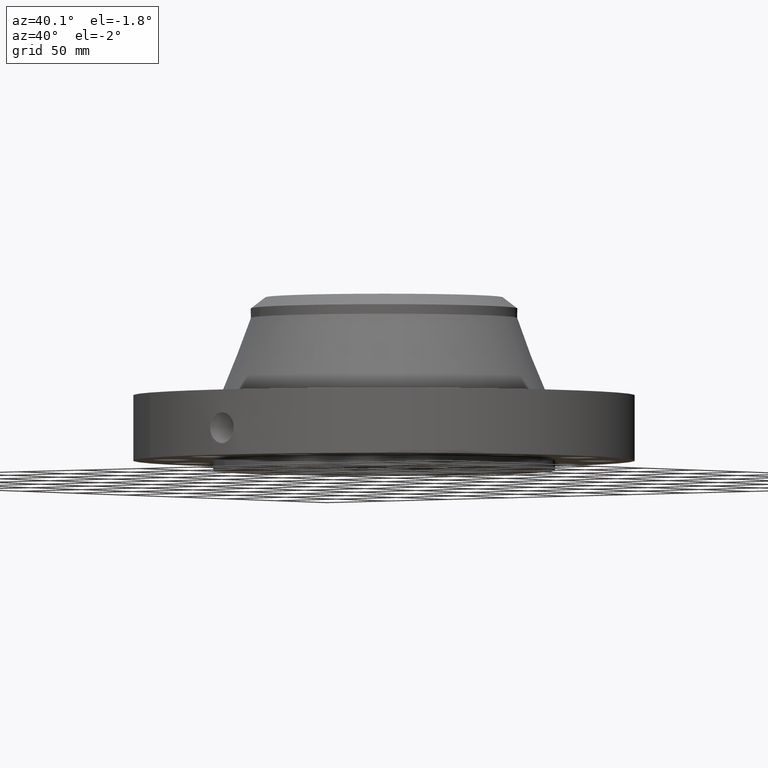
[diagram: clean part render]
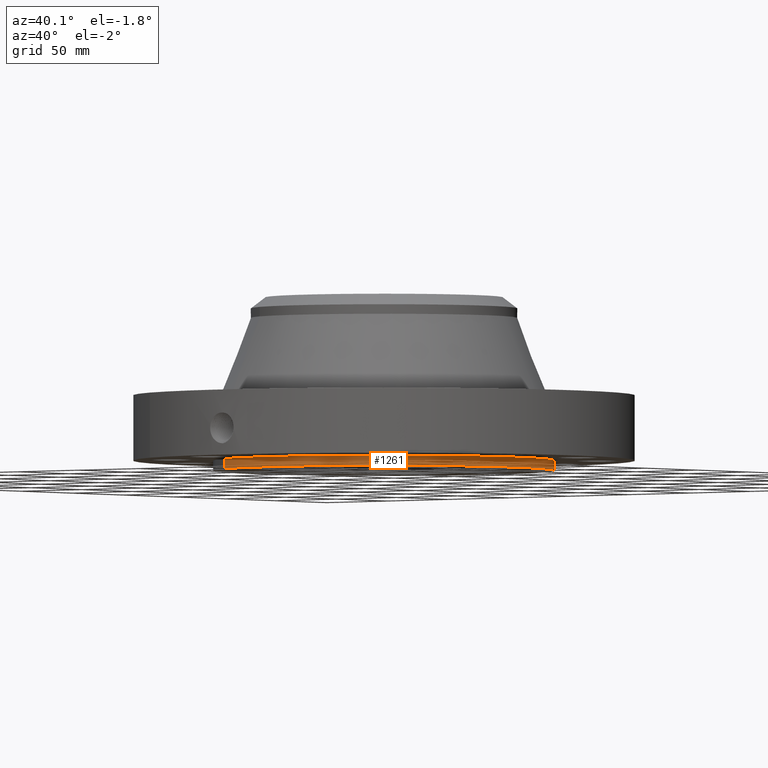
[diagram: same view with one face highlighted and labeled with its STEP entity id]
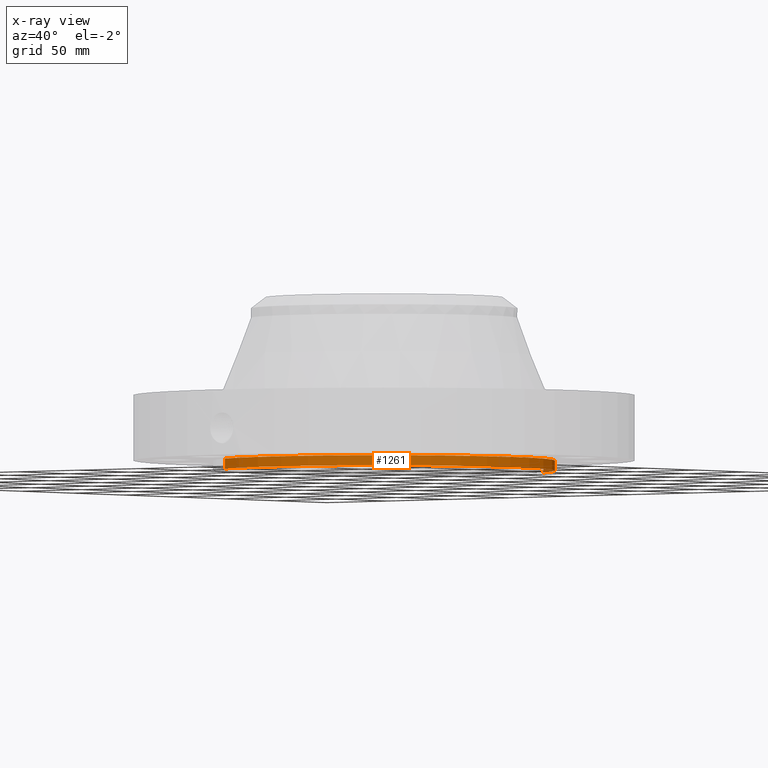
[diagram: x-ray of the same camera — body ghosted, the highlighted face saturated]
A machine part, auxiliary view. The second image highlights one B-rep face of the part: STEP entity #1261.
The next image is the same camera in x-ray: the body ghosted, the highlighted face saturated — about 0% of this face is hidden behind the body in this view.
In plain terms, the highlighted cylindrical surface (partial cylindrical patch) has radius 107.95 mm, axis along (0, 0, -1).
Its self-contained STEP definition (entity closure, byte-faithful):
#213=AXIS2_PLACEMENT_3D('Circle Axis2P3D',#211,#212,$) ;
#1234=AXIS2_PLACEMENT_3D('Cylinder Axis2P3D',#1231,#1232,#1233) ;
#1238=AXIS2_PLACEMENT_3D('Circle Axis2P3D',#1236,#1237,$) ;
#211=CARTESIAN_POINT('Axis2P3D Location',(0.,0.,0.250000000001)) ;
#215=CARTESIAN_POINT('Vertex',(2.03755853908,3.72972588805,0.250000000001)) ;
#217=CARTESIAN_POINT('Vertex',(-2.03755853908,-3.72972588805,0.250000000001)) ;
#1231=CARTESIAN_POINT('Axis2P3D Location',(0.,0.,2.15500000001)) ;
#1236=CARTESIAN_POINT('Axis2P3D Location',(0.,0.,2.79741234551E-016)) ;
#1240=CARTESIAN_POINT('Vertex',(2.03755853908,3.72972588805,2.79741234551E-016)) ;
#1242=CARTESIAN_POINT('Vertex',(-2.03755853908,-3.72972588805,2.79741234551E-016)) ;
#1245=CARTESIAN_POINT('Line Origine',(2.03755853908,3.72972588805,0.125000000001)) ;
#1250=CARTESIAN_POINT('Line Origine',(-2.03755853908,-3.72972588805,0.125000000001)) ;
#212=DIRECTION('Axis2P3D Direction',(0.,0.,-0.0393700787402)) ;
#1232=DIRECTION('Axis2P3D Direction',(0.,0.,-0.0393700787402)) ;
#1233=DIRECTION('Axis2P3D XDirection',(-0.0188750212049,-0.0345504945626,0.)) ;
#1237=DIRECTION('Axis2P3D Direction',(0.,0.,-0.0393700787402)) ;
#1246=DIRECTION('Vector Direction',(0.,0.,-0.0393700787402)) ;
#1251=DIRECTION('Vector Direction',(0.,0.,-0.0393700787402)) ;
#1247=VECTOR('Line Direction',#1246,0.0393700787402) ;
#1252=VECTOR('Line Direction',#1251,0.0393700787402) ;
#1256=ORIENTED_EDGE('',*,*,#1244,.F.) ;
#1257=ORIENTED_EDGE('',*,*,#1249,.T.) ;
#1258=ORIENTED_EDGE('',*,*,#219,.T.) ;
#1259=ORIENTED_EDGE('',*,*,#1254,.F.) ;
#1261=ADVANCED_FACE('PartBody',(#1260),#1235,.T.) ;
#214=CIRCLE('generated circle',#213,4.25000000002) ;
#1239=CIRCLE('generated circle',#1238,4.25000000002) ;
#1235=CYLINDRICAL_SURFACE('generated cylinder',#1234,4.25000000002) ;
#219=EDGE_CURVE('',#216,#218,#214,.T.) ;
#1244=EDGE_CURVE('',#1241,#1243,#1239,.T.) ;
#1249=EDGE_CURVE('',#1241,#216,#1248,.F.) ;
#1254=EDGE_CURVE('',#1243,#218,#1253,.F.) ;
#1255=EDGE_LOOP('',(#1256,#1257,#1258,#1259)) ;
#1260=FACE_OUTER_BOUND('',#1255,.T.) ;
#1248=LINE('Line',#1245,#1247) ;
#1253=LINE('Line',#1250,#1252) ;
#216=VERTEX_POINT('',#215) ;
#218=VERTEX_POINT('',#217) ;
#1241=VERTEX_POINT('',#1240) ;
#1243=VERTEX_POINT('',#1242) ;